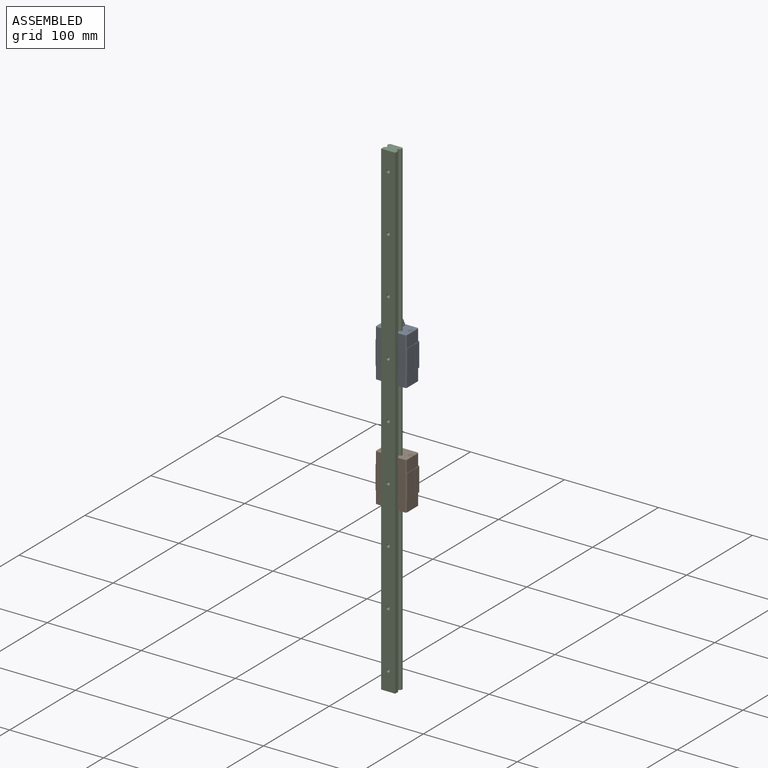
[diagram: assembled view]
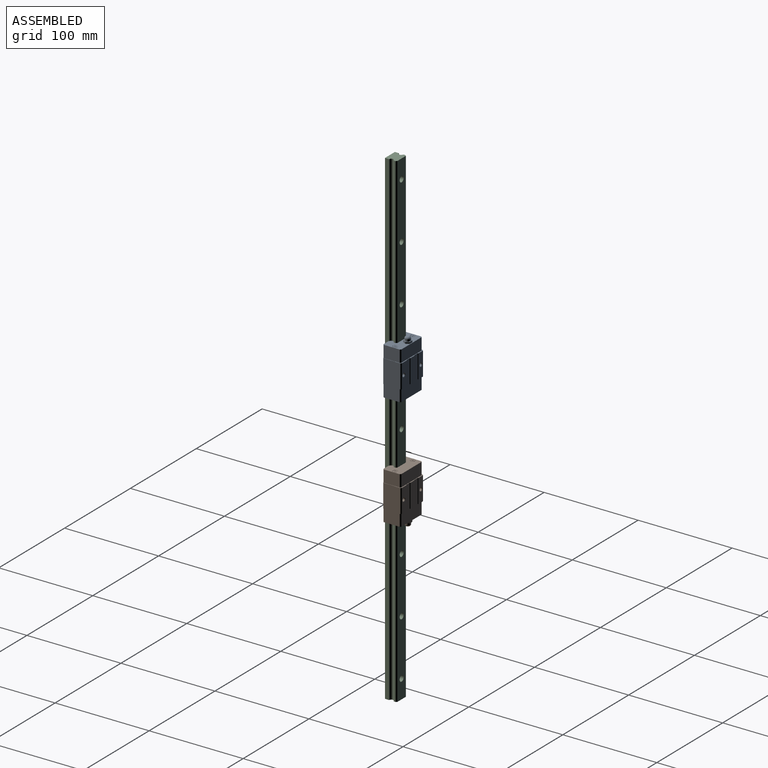
[diagram: assembled view, second angle]
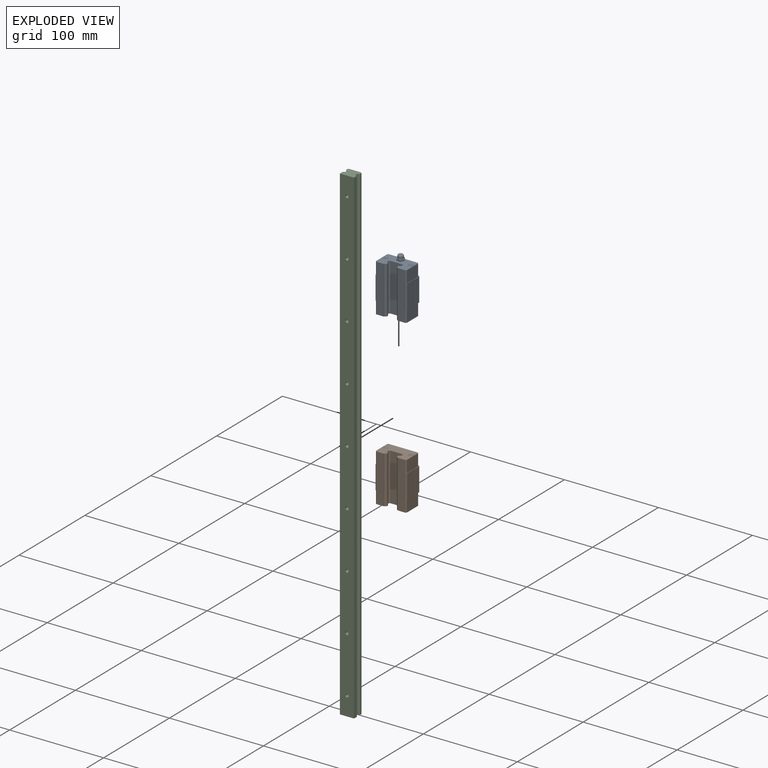
[diagram: exploded view]
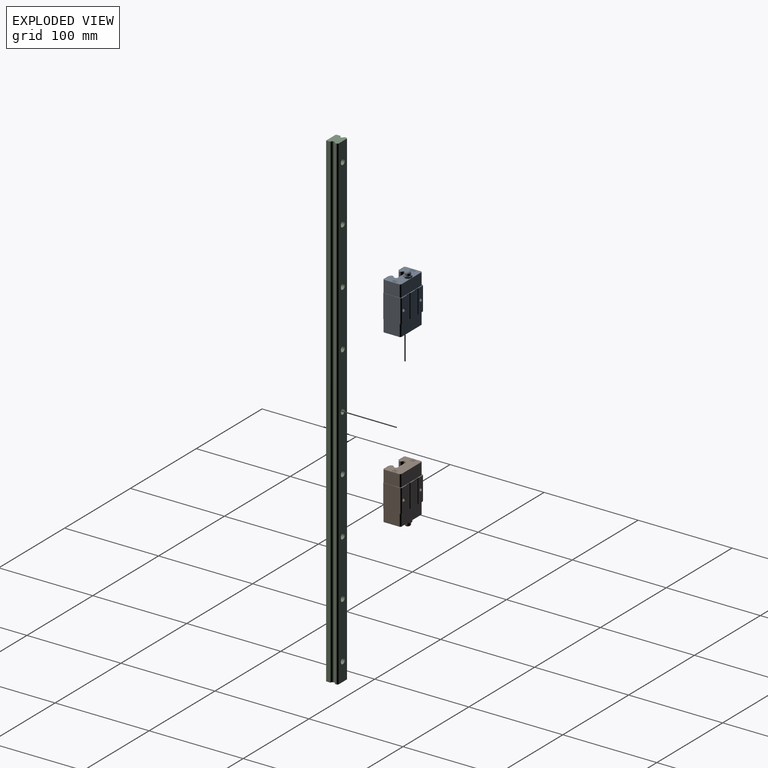
[diagram: exploded view, second angle]
ASSEMBLY  parts=3 mates=4
PART A: 146 faces, bbox 34.1x20.1x56.7 mm
  f0: cone r=3.72mm half-angle=45deg, axis (0,0,1), area 0.3mm2, adj f5,f130,f131
  f1: cone r=3.72mm half-angle=45deg, axis (0,0,1), area 0.3mm2, adj f5,f131,f132
  f2: cone r=3.72mm half-angle=45deg, axis (0,0,1), area 0.3mm2, adj f5,f132,f133
  f3: cone r=3.72mm half-angle=45deg, axis (0,0,1), area 0.3mm2, adj f5,f133,f134
  f4: cone r=3.72mm half-angle=45deg, axis (0,0,1), area 0.3mm2, adj f5,f130,f135
  f5: plane 32.9x19mm, normal (0,0,1), area 435.2mm2, adj f0,f1,f2,f3,f4,f19,f20,f21
  f6: plane 4.4x4.4mm, normal (0,0,-1), area 12.9mm2, adj f76,f116,f117,f118,f119,f120,f121,f122
  f7: plane 4.4x4.4mm, normal (0,0,-1), area 12.9mm2, adj f75,f103,f104,f105,f106,f107,f108,f109
  f8: plane 4.8x4.8mm, normal (0,0,-1), area 2.9mm2, adj f66,f76
  f9: plane 4.8x4.8mm, normal (0,0,-1), area 2.9mm2, adj f65,f75
  f10: plane 32.9x19mm, normal (0,0,-1), area 476.4mm2, adj f19,f20,f21,f22,f23,f24,f25,f26
  f11: plane 25x7mm, normal (0,1,0), area 162.4mm2, adj f13,f14,f43,f44,f62
  f12: plane 25x7mm, normal (0,1,0), area 162.4mm2, adj f13,f36,f37,f44,f59
  f13: plane 34x20mm, normal (0,0,1), area 42.9mm2, adj f11,f12,f14,f15,f16,f17,f18,f19
  f14: plane 25x1mm, normal (-0.71,0.71,0), area 35.4mm2, adj f11,f13,f15,f44
  f15: plane 25x6mm, normal (-1,0,0), area 150mm2, adj f13,f14,f16,f44
  f16: plane 25x0.25mm, normal (0,-1,0), area 6.3mm2, adj f13,f15,f17,f44
  f17: plane 25x12mm, normal (-1,0,0), area 300.1mm2, adj f13,f16,f18,f44
  f18: plane 25x1mm, normal (-0.71,-0.71,0), area 35.3mm2, adj f13,f17,f19,f44
  f19: plane 50.6x8.25mm, normal (0,-1,0), area 409.9mm2, adj f5,f10,f13,f18,f20,f44,f47,f57
  f20: plane 50.6x0.51mm, normal (1,0,0), area 25.6mm2, adj f5,f10,f19,f21
  f21: cylinder r=2.2mm len=50.6mm, axis (0,0,-1), area 303.3mm2, adj f5,f10,f20,f22
  f22: cylinder r=1.5mm len=50.6mm, axis (0,0,-1), area 87.5mm2, adj f5,f10,f21,f23
  f23: plane 50.6x1.29mm, normal (1,0,0), area 65.2mm2, adj f5,f10,f22,f24
  f24: plane 50.6x1.12mm, normal (0.71,-0.71,0), area 80.5mm2, adj f5,f10,f23,f25
  f25: plane 50.6x12.75mm, normal (0,-1,0), area 645.2mm2, adj f5,f10,f24,f26
  f26: plane 50.6x1.12mm, normal (-0.71,-0.71,0), area 80.5mm2, adj f5,f10,f25,f27
  f27: plane 50.6x1.29mm, normal (-1,0,0), area 65.2mm2, adj f5,f10,f26,f28
  f28: cylinder r=1.5mm len=50.6mm, axis (0,0,-1), area 87.5mm2, adj f5,f10,f27,f29
  f29: cylinder r=2.2mm len=50.6mm, axis (0,0,-1), area 303.3mm2, adj f5,f10,f28,f30
  f30: plane 50.6x0.51mm, normal (-1,0,0), area 25.6mm2, adj f5,f10,f29,f31
  f31: plane 50.6x8.25mm, normal (0,-1,0), area 409.9mm2, adj f5,f10,f13,f30,f32,f44,f48,f56
  f32: plane 25x1mm, normal (0.71,-0.71,0), area 35.3mm2, adj f13,f31,f33,f44
  f33: plane 25x12mm, normal (1,0,0), area 300.1mm2, adj f13,f32,f34,f44
  f34: plane 25x0.25mm, normal (0,-1,0), area 6.3mm2, adj f13,f33,f35,f44
  f35: plane 25x6mm, normal (1,0,0), area 150mm2, adj f13,f34,f36,f44
  f36: plane 25x1mm, normal (0.71,0.71,0), area 35.4mm2, adj f12,f13,f35,f44
  f37: plane 25x0.5mm, normal (-0.71,0.71,0), area 17.7mm2, adj f12,f13,f38,f44
  f38: plane 25x5mm, normal (0,1,0), area 125mm2, adj f13,f37,f39,f44
  f39: plane 25x0.5mm, normal (0.71,0.71,0), area 17.7mm2, adj f13,f38,f40,f44
  f40: plane 25x6mm, normal (0,1,0), area 150mm2, adj f13,f39,f41,f44
  f41: plane 25x0.5mm, normal (-0.71,0.71,0), area 17.7mm2, adj f13,f40,f42,f44
  f42: plane 25x5mm, normal (0,1,0), area 125mm2, adj f13,f41,f43,f44
  f43: plane 25x0.5mm, normal (0.71,0.71,0), area 17.7mm2, adj f11,f13,f42,f44
  f44: plane 34x20mm, normal (0,0,-1), area 42.9mm2, adj f11,f12,f14,f15,f16,f17,f18,f19
  f45: plane 12.8x0.99mm, normal (-0.71,0.71,0), area 17.9mm2, adj f5,f13,f46,f51
  f46: plane 17.01x12.8mm, normal (-1,0,0), area 217.8mm2, adj f5,f13,f45,f47
  f47: plane 12.8x1mm, normal (-0.71,-0.71,0), area 18mm2, adj f5,f13,f19,f46
  f48: plane 12.8x1mm, normal (0.71,-0.71,0), area 18mm2, adj f5,f13,f31,f49
  f49: plane 17.01x12.8mm, normal (1,0,0), area 217.8mm2, adj f5,f13,f48,f50
  f50: plane 12.8x0.99mm, normal (0.71,0.71,0), area 17.9mm2, adj f5,f13,f49,f51
  f51: plane 30.92x12.8mm, normal (0,1,0), area 395.8mm2, adj f5,f13,f45,f50
  f52: plane 12.8x0.99mm, normal (-0.71,0.71,0), area 17.9mm2, adj f10,f44,f53,f58
  f53: plane 30.92x12.8mm, normal (0,1,0), area 395.8mm2, adj f10,f44,f52,f54
  f54: plane 12.8x0.99mm, normal (0.71,0.71,0), area 17.9mm2, adj f10,f44,f53,f55
  f55: plane 17.01x12.8mm, normal (1,0,0), area 217.8mm2, adj f10,f44,f54,f56
  f56: plane 12.8x1mm, normal (0.71,-0.71,0), area 18mm2, adj f10,f31,f44,f55
  f57: plane 12.8x1mm, normal (-0.71,-0.71,0), area 18mm2, adj f10,f19,f44,f58
  f58: plane 17.01x12.8mm, normal (-1,0,0), area 217.8mm2, adj f10,f44,f52,f57
  f59: cone r=1.62mm half-angle=45deg, axis (0,1,0), area 6.1mm2, adj f12,f60
  f60: cylinder r=1.62mm len=9.69mm, axis (0,1,0), area 98.6mm2, adj f59,f61
  f61: cone r=0mm half-angle=60deg, axis (0,1,0), area 9.5mm2, adj f60
  f62: cone r=1.62mm half-angle=45deg, axis (0,1,0), area 6.1mm2, adj f11,f63
  f63: cylinder r=1.62mm len=9.69mm, axis (0,1,0), area 98.6mm2, adj f62,f64
  f64: cone r=0mm half-angle=60deg, axis (0,1,0), area 9.5mm2, adj f63
  f65: cylinder r=2.4mm len=4.8mm, axis (0,0,-1), area 37.7mm2, adj f9,f10
  f66: cylinder r=2.4mm len=4.8mm, axis (0,0,-1), area 37.7mm2, adj f8,f10
  f67: cylinder r=2.4mm len=4.8mm, axis (0,0,1), area 37.7mm2, adj f5,f68
  f68: plane 4.8x4.8mm, normal (0,0,1), area 2.9mm2, adj f67,f71
  f69: cylinder r=2.4mm len=4.8mm, axis (0,0,1), area 37.7mm2, adj f5,f70
  f70: plane 4.8x4.8mm, normal (0,0,1), area 2.9mm2, adj f69,f73
  f71: cylinder r=2.2mm len=4.4mm, axis (0,0,1), area 34.6mm2, adj f68,f72
  f72: plane 4.4x4.4mm, normal (0,0,1), area 12.9mm2, adj f71,f77,f78,f79,f80,f81,f82,f83
  f73: cylinder r=2.2mm len=4.4mm, axis (0,0,1), area 34.6mm2, adj f70,f74
  f74: plane 4.4x4.4mm, normal (0,0,1), area 12.9mm2, adj f73,f90,f91,f92,f93,f94,f95,f96
  f75: cylinder r=2.2mm len=4.4mm, axis (0,0,-1), area 34.6mm2, adj f7,f9
  f76: cylinder r=2.2mm len=4.4mm, axis (0,0,-1), area 34.6mm2, adj f6,f8
  f77: cylinder r=1.54mm len=0.4mm, axis (0,0,1), area 0.1mm2, adj f72,f78,f88,f89
  f78: plane 1.33x0.2mm, normal (0,-1,0), area 0.3mm2, adj f72,f77,f79,f89
  f79: plane 1.33x0.2mm, normal (1,0,0), area 0.3mm2, adj f72,f78,f80,f89
  f80: cylinder r=1.54mm len=0.4mm, axis (0,0,1), area 0.1mm2, adj f72,f79,f81,f89
  f81: plane 1.33x0.2mm, normal (-1,0,0), area 0.3mm2, adj f72,f80,f82,f89
  f82: plane 1.33x0.2mm, normal (0,-1,0), area 0.3mm2, adj f72,f81,f83,f89
  f83: cylinder r=1.54mm len=0.4mm, axis (0,0,1), area 0.1mm2, adj f72,f82,f84,f89
  f84: plane 1.33x0.2mm, normal (0,1,0), area 0.3mm2, adj f72,f83,f85,f89
  f85: plane 1.33x0.2mm, normal (-1,0,0), area 0.3mm2, adj f72,f84,f86,f89
  f86: cylinder r=1.54mm len=0.4mm, axis (0,0,1), area 0.1mm2, adj f72,f85,f87,f89
  f87: plane 1.33x0.2mm, normal (1,0,0), area 0.3mm2, adj f72,f86,f88,f89
  f88: plane 1.33x0.2mm, normal (0,1,0), area 0.3mm2, adj f72,f77,f87,f89
  f89: plane 3.08x3.08mm, normal (0,0,1), area 2.3mm2, adj f77,f78,f79,f80,f81,f82,f83,f84
  f90: cylinder r=1.54mm len=0.4mm, axis (0,0,1), area 0.1mm2, adj f74,f91,f101,f102
  f91: plane 1.33x0.2mm, normal (0,-1,0), area 0.3mm2, adj f74,f90,f92,f102
  f92: plane 1.33x0.2mm, normal (1,0,0), area 0.3mm2, adj f74,f91,f93,f102
  f93: cylinder r=1.54mm len=0.4mm, axis (0,0,1), area 0.1mm2, adj f74,f92,f94,f102
  f94: plane 1.33x0.2mm, normal (-1,0,0), area 0.3mm2, adj f74,f93,f95,f102
  f95: plane 1.33x0.2mm, normal (0,-1,0), area 0.3mm2, adj f74,f94,f96,f102
  f96: cylinder r=1.54mm len=0.4mm, axis (0,0,1), area 0.1mm2, adj f74,f95,f97,f102
  f97: plane 1.33x0.2mm, normal (0,1,0), area 0.3mm2, adj f74,f96,f98,f102
  f98: plane 1.33x0.2mm, normal (-1,0,0), area 0.3mm2, adj f74,f97,f99,f102
  f99: cylinder r=1.54mm len=0.4mm, axis (0,0,1), area 0.1mm2, adj f74,f98,f100,f102
  f100: plane 1.33x0.2mm, normal (1,0,0), area 0.3mm2, adj f74,f99,f101,f102
  f101: plane 1.33x0.2mm, normal (0,1,0), area 0.3mm2, adj f74,f90,f100,f102
  f102: plane 3.08x3.08mm, normal (0,0,1), area 2.3mm2, adj f90,f91,f92,f93,f94,f95,f96,f97
  f103: cylinder r=1.54mm len=0.4mm, axis (0,0,-1), area 0.1mm2, adj f7,f104,f114,f115
  f104: plane 1.33x0.2mm, normal (0,1,0), area 0.3mm2, adj f7,f103,f105,f115
  f105: plane 1.33x0.2mm, normal (1,0,0), area 0.3mm2, adj f7,f104,f106,f115
  f106: cylinder r=1.54mm len=0.4mm, axis (0,0,-1), area 0.1mm2, adj f7,f105,f107,f115
  f107: plane 1.33x0.2mm, normal (-1,0,0), area 0.3mm2, adj f7,f106,f108,f115
  f108: plane 1.33x0.2mm, normal (0,1,0), area 0.3mm2, adj f7,f107,f109,f115
  f109: cylinder r=1.54mm len=0.4mm, axis (0,0,-1), area 0.1mm2, adj f7,f108,f110,f115
  f110: plane 1.33x0.2mm, normal (0,-1,0), area 0.3mm2, adj f7,f109,f111,f115
  f111: plane 1.33x0.2mm, normal (-1,0,0), area 0.3mm2, adj f7,f110,f112,f115
  f112: cylinder r=1.54mm len=0.4mm, axis (0,0,-1), area 0.1mm2, adj f7,f111,f113,f115
  f113: plane 1.33x0.2mm, normal (1,0,0), area 0.3mm2, adj f7,f112,f114,f115
  f114: plane 1.33x0.2mm, normal (0,-1,0), area 0.3mm2, adj f7,f103,f113,f115
  f115: plane 3.08x3.08mm, normal (0,0,-1), area 2.3mm2, adj f103,f104,f105,f106,f107,f108,f109,f110
  f116: cylinder r=1.54mm len=0.4mm, axis (0,0,-1), area 0.1mm2, adj f6,f117,f127,f128
  f117: plane 1.33x0.2mm, normal (0,1,0), area 0.3mm2, adj f6,f116,f118,f128
  f118: plane 1.33x0.2mm, normal (1,0,0), area 0.3mm2, adj f6,f117,f119,f128
  f119: cylinder r=1.54mm len=0.4mm, axis (0,0,-1), area 0.1mm2, adj f6,f118,f120,f128
  f120: plane 1.33x0.2mm, normal (-1,0,0), area 0.3mm2, adj f6,f119,f121,f128
  f121: plane 1.33x0.2mm, normal (0,1,0), area 0.3mm2, adj f6,f120,f122,f128
  f122: cylinder r=1.54mm len=0.4mm, axis (0,0,-1), area 0.1mm2, adj f6,f121,f123,f128
  f123: plane 1.33x0.2mm, normal (0,-1,0), area 0.3mm2, adj f6,f122,f124,f128
  f124: plane 1.33x0.2mm, normal (-1,0,0), area 0.3mm2, adj f6,f123,f125,f128
  f125: cylinder r=1.54mm len=0.4mm, axis (0,0,-1), area 0.1mm2, adj f6,f124,f126,f128
  f126: plane 1.33x0.2mm, normal (1,0,0), area 0.3mm2, adj f6,f125,f127,f128
  f127: plane 1.33x0.2mm, normal (0,-1,0), area 0.3mm2, adj f6,f116,f126,f128
  f128: plane 3.08x3.08mm, normal (0,0,-1), area 2.3mm2, adj f116,f117,f118,f119,f120,f121,f122,f123
  f129: cone r=3.72mm half-angle=45deg, axis (0,0,1), area 0.3mm2, adj f5,f134,f135
  f130: plane 3.55x2.12mm, normal (-0.87,0.5,0), area 7.9mm2, adj f0,f4,f5,f131,f135,f143,f144,f145
  f131: plane 3.55x2.12mm, normal (-0.87,-0.5,0), area 7.9mm2, adj f0,f1,f5,f130,f132,f142,f143,f145
  f132: plane 4.09x2.12mm, normal (0,-1,0), area 7.9mm2, adj f1,f2,f5,f131,f133,f141,f142,f145
  f133: plane 3.55x2.12mm, normal (0.87,-0.5,0), area 7.9mm2, adj f2,f3,f5,f132,f134,f140,f141,f145
  f134: plane 3.55x2.12mm, normal (0.87,0.5,0), area 7.9mm2, adj f3,f5,f129,f133,f135,f139,f140,f145
  f135: plane 4.09x2.12mm, normal (0,1,0), area 7.9mm2, adj f4,f5,f129,f130,f134,f139,f144,f145
  f136: plane 1.94x1.94mm, normal (0,0,1), area 3mm2, adj f137
  f137: torus R=0.97mm, axis (0,0,1), area 44.3mm2, adj f136,f138
  f138: cylinder r=2.97mm len=5.94mm, axis (0,0,1), area 36mm2, adj f137,f145
  f139: cone r=4.04mm half-angle=45deg, axis (0,0,-1), area 0.3mm2, adj f134,f135,f145
  f140: cone r=4.04mm half-angle=45deg, axis (0,0,-1), area 0.3mm2, adj f133,f134,f145
  f141: cone r=4.04mm half-angle=45deg, axis (0,0,-1), area 0.3mm2, adj f132,f133,f145
  f142: cone r=4.04mm half-angle=45deg, axis (0,0,-1), area 0.3mm2, adj f131,f132,f145
  f143: cone r=4.04mm half-angle=45deg, axis (0,0,-1), area 0.3mm2, adj f130,f131,f145
  f144: cone r=4.04mm half-angle=45deg, axis (0,0,-1), area 0.3mm2, adj f130,f135,f145
  f145: plane 7.48x6.99mm, normal (0,0,1), area 13.6mm2, adj f130,f131,f132,f133,f134,f135,f138,f139
PART B: same geometry as A
PART C: 41 faces, bbox 15x12.5x520 mm
  f0: plane 520x15mm, normal (0,-1,0), area 7713.4mm2, adj f2,f3,f12,f13,f16,f19,f22,f25
  f1: plane 520x12.75mm, normal (0,1,0), area 6376.3mm2, adj f7,f8,f12,f13,f14,f17,f20,f23
  f2: plane 520x4.51mm, normal (-1,0,0), area 2342.6mm2, adj f0,f11,f12,f13
  f3: plane 520x4.51mm, normal (1,0,0), area 2342.6mm2, adj f0,f4,f12,f13
  f4: cylinder r=2.2mm len=520mm, axis (0,0,-1), area 3116.5mm2, adj f3,f5,f12,f13
  f5: cylinder r=1.5mm len=520mm, axis (0,0,-1), area 899.6mm2, adj f4,f6,f12,f13
  f6: plane 520x1.29mm, normal (1,0,0), area 670mm2, adj f5,f7,f12,f13
  f7: plane 520x1.12mm, normal (0.71,0.71,0), area 826.8mm2, adj f1,f6,f12,f13
  f8: plane 520x1.12mm, normal (-0.71,0.71,0), area 826.8mm2, adj f1,f9,f12,f13
  f9: plane 520x1.29mm, normal (-1,0,0), area 670mm2, adj f8,f10,f12,f13
  f10: cylinder r=1.5mm len=520mm, axis (0,0,-1), area 899.6mm2, adj f9,f11,f12,f13
  f11: cylinder r=2.2mm len=520mm, axis (0,0,-1), area 3116.5mm2, adj f2,f10,f12,f13
  f12: plane 15x12.5mm, normal (0,0,1), area 170.6mm2, adj f0,f1,f2,f3,f4,f5,f6,f7
  f13: plane 15x12.5mm, normal (0,0,-1), area 170.6mm2, adj f0,f1,f2,f3,f4,f5,f6,f7
  f14: cylinder r=3mm len=6mm, axis (0,1,0), area 84.8mm2, adj f1,f15
  f15: plane 6x6mm, normal (0,1,0), area 18.7mm2, adj f14,f16
  f16: cylinder r=1.75mm len=8mm, axis (0,1,0), area 88mm2, adj f0,f15
  f17: cylinder r=3mm len=6mm, axis (0,1,0), area 84.8mm2, adj f1,f18
  f18: plane 6x6mm, normal (0,1,0), area 18.7mm2, adj f17,f19
  f19: cylinder r=1.75mm len=8mm, axis (0,1,0), area 88mm2, adj f0,f18
  f20: cylinder r=3mm len=6mm, axis (0,1,0), area 84.8mm2, adj f1,f21
  f21: plane 6x6mm, normal (0,1,0), area 18.7mm2, adj f20,f22
  f22: cylinder r=1.75mm len=8mm, axis (0,1,0), area 88mm2, adj f0,f21
  f23: cylinder r=3mm len=6mm, axis (0,1,0), area 84.8mm2, adj f1,f24
  f24: plane 6x6mm, normal (0,1,0), area 18.7mm2, adj f23,f25
  f25: cylinder r=1.75mm len=8mm, axis (0,1,0), area 88mm2, adj f0,f24
  f26: cylinder r=3mm len=6mm, axis (0,1,0), area 84.8mm2, adj f1,f27
  f27: plane 6x6mm, normal (0,1,0), area 18.7mm2, adj f26,f28
  f28: cylinder r=1.75mm len=8mm, axis (0,1,0), area 88mm2, adj f0,f27
  f29: cylinder r=3mm len=6mm, axis (0,1,0), area 84.8mm2, adj f1,f30
  f30: plane 6x6mm, normal (0,1,0), area 18.7mm2, adj f29,f31
  f31: cylinder r=1.75mm len=8mm, axis (0,1,0), area 88mm2, adj f0,f30
  f32: cylinder r=3mm len=6mm, axis (0,1,0), area 84.8mm2, adj f1,f33
  f33: plane 6x6mm, normal (0,1,0), area 18.7mm2, adj f32,f34
  f34: cylinder r=1.75mm len=8mm, axis (0,1,0), area 88mm2, adj f0,f33
  f35: cylinder r=3mm len=6mm, axis (0,1,0), area 84.8mm2, adj f1,f36
  f36: plane 6x6mm, normal (0,1,0), area 18.7mm2, adj f35,f37
  f37: cylinder r=1.75mm len=8mm, axis (0,1,0), area 88mm2, adj f0,f36
  f38: cylinder r=3mm len=6mm, axis (0,1,0), area 84.8mm2, adj f1,f39
  f39: plane 6x6mm, normal (0,1,0), area 18.7mm2, adj f38,f40
  f40: cylinder r=1.75mm len=8mm, axis (0,1,0), area 88mm2, adj f0,f39
PLACE A t=(-65.55,-55.77,38.65)mm
PLACE B rot(axis=(0,1,0),180deg) t=(-65.55,-55.77,-81.16)mm
PLACE C rot(axis=(0,1,0),180deg) t=(-65.55,-59.77,-21.09)mm
MATE planar B.f25 <-> C.f29  axis (0,-1,0) through (-65.55,-47.27,-81.16)mm
MATE cylindrical C.f4 <-> A.f21  axis (0,0,1) through (-73.05,-53.07,238.91)mm
MATE cylindrical B.f29 <-> C.f4  axis (0,0,1) through (-73.05,-53.07,-81.16)mm
MATE planar C.f29 <-> A.f25  axis (0,1,0) through (-65.55,-47.27,-21.09)mm
